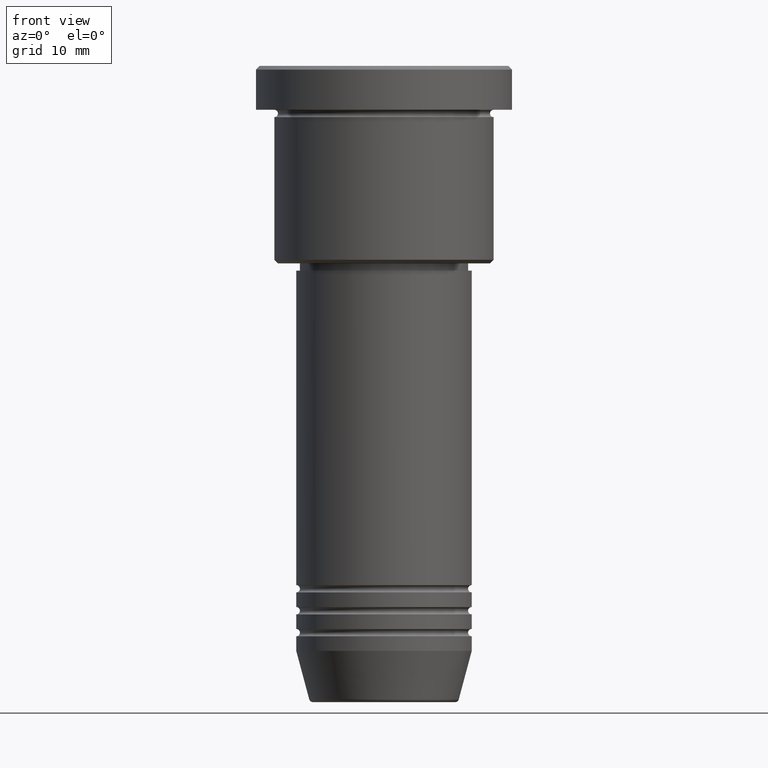
[diagram: clean part render]
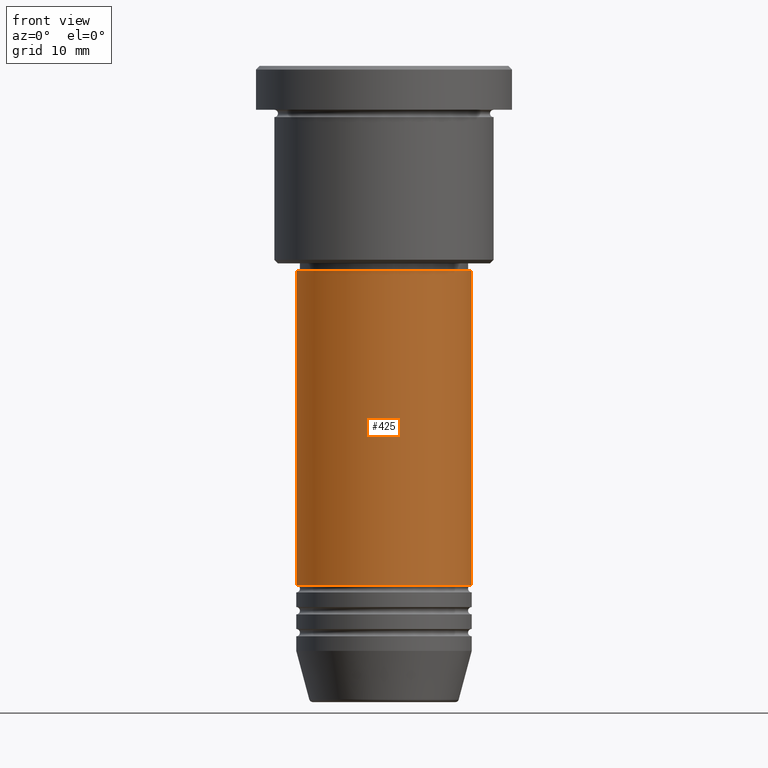
[diagram: same view with one face highlighted and labeled with its STEP entity id]
A machine part, front view. The second image highlights one B-rep face of the part: STEP entity #425.
In plain terms, the highlighted cylindrical surface (partial cylindrical patch) has radius 12 mm, axis along (-0, -0, 1).
Its self-contained STEP definition (entity closure, byte-faithful):
#49 = LINE ( 'NONE', #915, #645 ) ;
#68 = VERTEX_POINT ( 'NONE', #502 ) ;
#70 = ORIENTED_EDGE ( 'NONE', *, *, #596, .T. ) ;
#109 = EDGE_CURVE ( 'NONE', #68, #125, #49, .T. ) ;
#125 = VERTEX_POINT ( 'NONE', #644 ) ;
#163 = EDGE_CURVE ( 'NONE', #125, #1177, #1104, .T. ) ;
#233 = EDGE_CURVE ( 'NONE', #68, #1096, #402, .T. ) ;
#315 = DIRECTION ( 'NONE',  ( -0.000000000000000000, -0.000000000000000000, 1.000000000000000000 ) ) ;
#325 = CARTESIAN_POINT ( 'NONE',  ( 0.000000000000000000, 0.000000000000000000, -70.99999999999997158 ) ) ;
#365 = CARTESIAN_POINT ( 'NONE',  ( 0.000000000000000000, 0.000000000000000000, 0.000000000000000000 ) ) ;
#388 = VECTOR ( 'NONE', #1045, 1000.000000000000000 ) ;
#402 = CIRCLE ( 'NONE', #1147, 12.00000000000000000 ) ;
#425 = ADVANCED_FACE ( 'NONE', ( #830 ), #624, .T. ) ;
#430 = CARTESIAN_POINT ( 'NONE',  ( 0.000000000000000000, 0.000000000000000000, -27.99999999999996803 ) ) ;
#491 = EDGE_LOOP ( 'NONE', ( #1094, #1072, #70, #880 ) ) ;
#502 = CARTESIAN_POINT ( 'NONE',  ( -12.00000000000000000, 1.469576158976823947E-15, -70.99999999999997158 ) ) ;
#507 = LINE ( 'NONE', #599, #388 ) ;
#587 = AXIS2_PLACEMENT_3D ( 'NONE', #365, #723, #638 ) ;
#596 = EDGE_CURVE ( 'NONE', #1096, #1177, #507, .T. ) ;
#599 = CARTESIAN_POINT ( 'NONE',  ( 12.00000000000000000, 0.000000000000000000, 0.000000000000000000 ) ) ;
#609 = CARTESIAN_POINT ( 'NONE',  ( 12.00000000000000000, 0.000000000000000000, -27.99999999999996803 ) ) ;
#624 = CYLINDRICAL_SURFACE ( 'NONE', #587, 12.00000000000000000 ) ;
#638 = DIRECTION ( 'NONE',  ( 1.000000000000000000, 0.000000000000000000, 0.000000000000000000 ) ) ;
#644 = CARTESIAN_POINT ( 'NONE',  ( -12.00000000000000000, 1.469576158976823947E-15, -27.99999999999996803 ) ) ;
#645 = VECTOR ( 'NONE', #315, 1000.000000000000000 ) ;
#723 = DIRECTION ( 'NONE',  ( -0.000000000000000000, -0.000000000000000000, 1.000000000000000000 ) ) ;
#830 = FACE_OUTER_BOUND ( 'NONE', #491, .T. ) ;
#880 = ORIENTED_EDGE ( 'NONE', *, *, #163, .F. ) ;
#889 = DIRECTION ( 'NONE',  ( 1.000000000000000000, 0.000000000000000000, 0.000000000000000000 ) ) ;
#915 = CARTESIAN_POINT ( 'NONE',  ( -12.00000000000000000, 1.469576158976823947E-15, 0.000000000000000000 ) ) ;
#960 = DIRECTION ( 'NONE',  ( -0.000000000000000000, -0.000000000000000000, 1.000000000000000000 ) ) ;
#979 = DIRECTION ( 'NONE',  ( 1.000000000000000000, 0.000000000000000000, 0.000000000000000000 ) ) ;
#1045 = DIRECTION ( 'NONE',  ( -0.000000000000000000, -0.000000000000000000, 1.000000000000000000 ) ) ;
#1054 = DIRECTION ( 'NONE',  ( -0.000000000000000000, -0.000000000000000000, 1.000000000000000000 ) ) ;
#1072 = ORIENTED_EDGE ( 'NONE', *, *, #233, .T. ) ;
#1094 = ORIENTED_EDGE ( 'NONE', *, *, #109, .F. ) ;
#1096 = VERTEX_POINT ( 'NONE', #1138 ) ;
#1104 = CIRCLE ( 'NONE', #1151, 12.00000000000000000 ) ;
#1138 = CARTESIAN_POINT ( 'NONE',  ( 12.00000000000000000, 0.000000000000000000, -70.99999999999997158 ) ) ;
#1147 = AXIS2_PLACEMENT_3D ( 'NONE', #325, #1054, #979 ) ;
#1151 = AXIS2_PLACEMENT_3D ( 'NONE', #430, #960, #889 ) ;
#1177 = VERTEX_POINT ( 'NONE', #609 ) ;